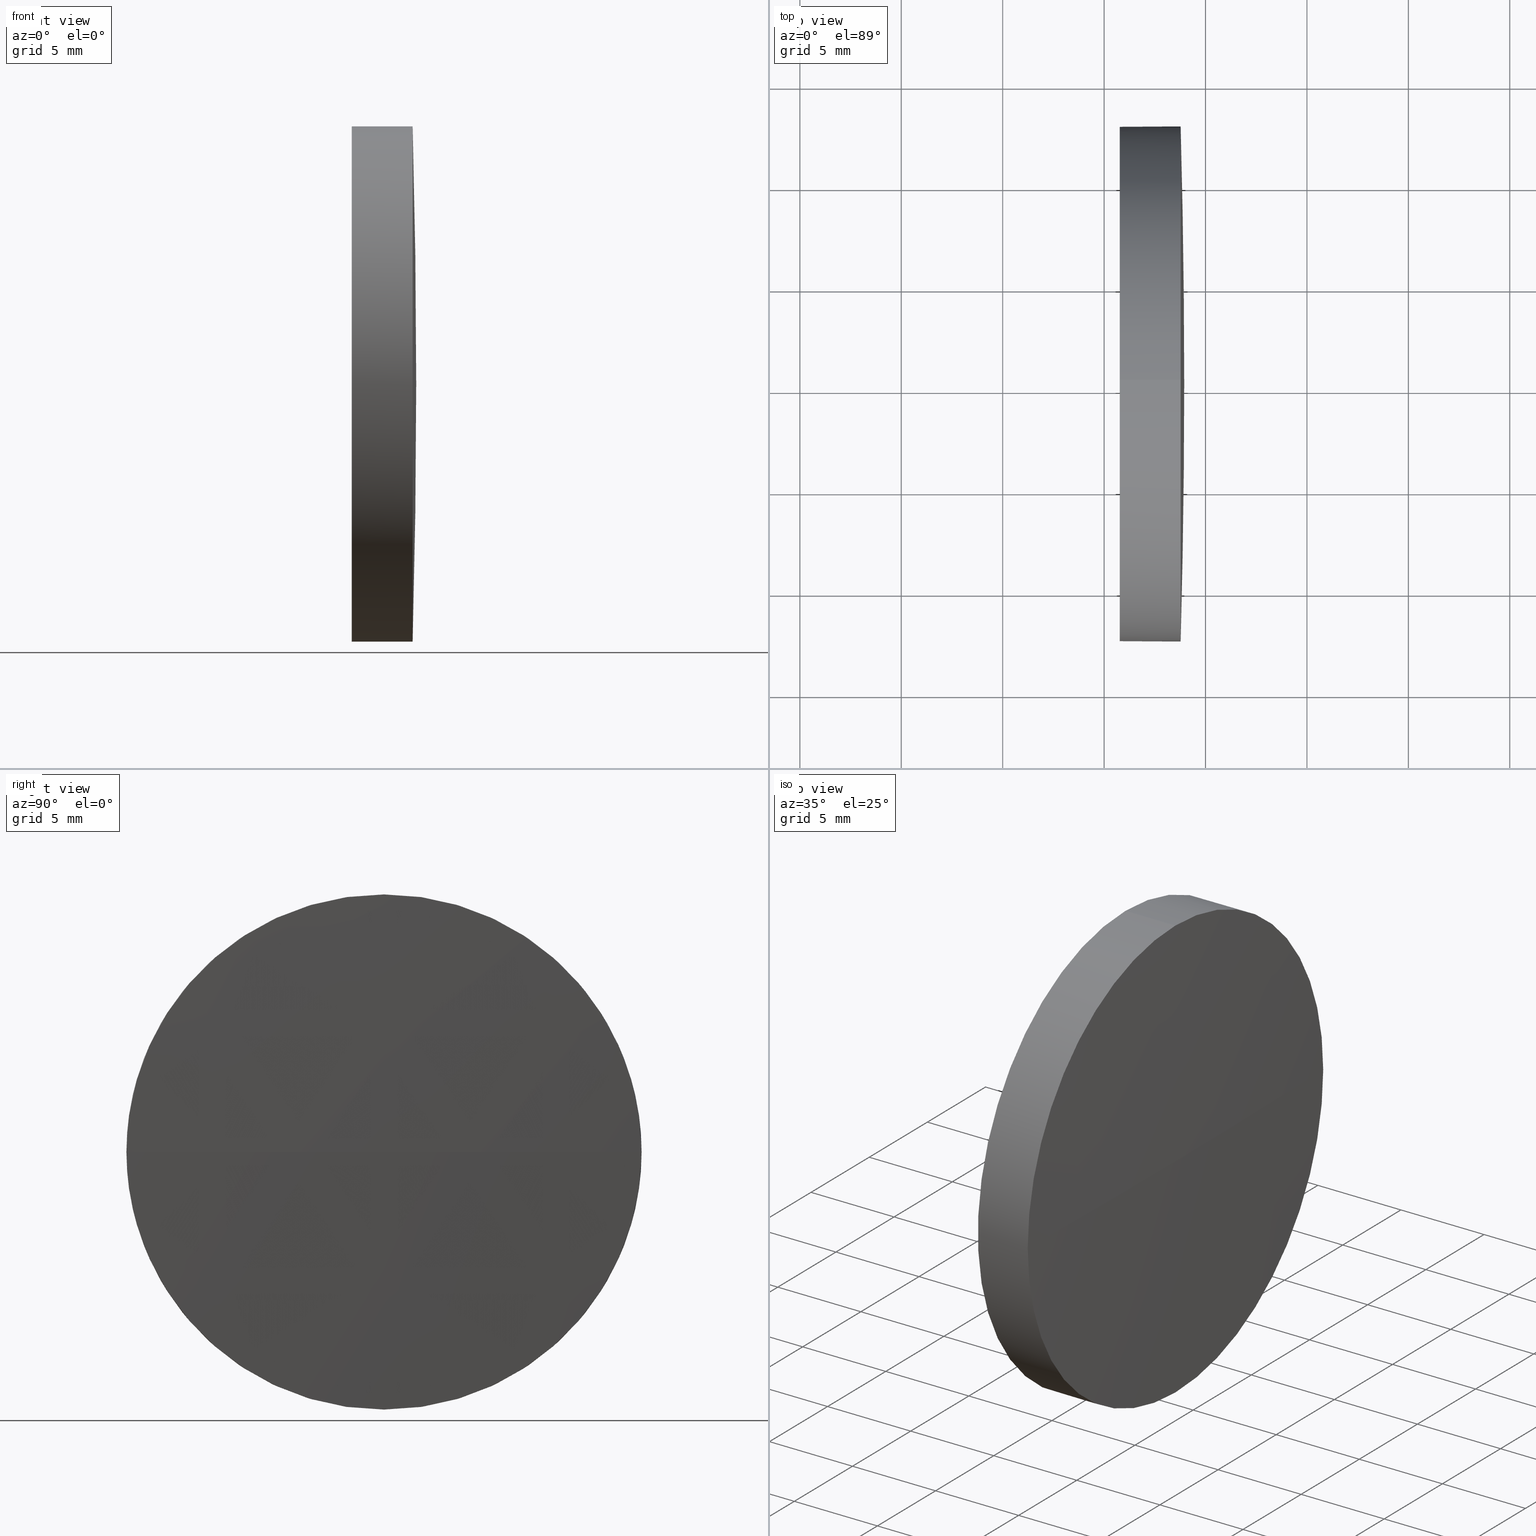
[diagram: canonical four-view strip — front | top / right | iso, engineering-drawing reading convention]
A machine part, canonical four-view strip (front | top / right | iso — engineering-drawing reading convention). The complete STEP part file that produces these views, byte-faithful:
ISO-10303-21;
HEADER;
FILE_DESCRIPTION (( 'STEP AP214' ),
    '1' );
FILE_NAME ('400022.STEP',
    '2019-08-21T06:19:14',
    ( '' ),
    ( '' ),
    'SwSTEP 2.0',
    'SolidWorks 2016',
    '' );
FILE_SCHEMA (( 'AUTOMOTIVE_DESIGN' ));
ENDSEC;

DATA;
#1 = PRODUCT_DEFINITION ( 'δ֪', '', #101, #146 ) ;
#2 = EDGE_LOOP ( 'NONE', ( #55, #157, #121, #186 ) ) ;
#3 = EDGE_CURVE ( 'NONE', #47, #46, #42, .T. ) ;
#4 = PRODUCT_RELATED_PRODUCT_CATEGORY ( 'part', '', ( #26 ) ) ;
#5 = ORIENTED_EDGE ( 'NONE', *, *, #173, .T. ) ;
#6 = VERTEX_POINT ( 'NONE', #132 ) ;
#7 = CIRCLE ( 'NONE', #59, 459.0000000000000000 ) ;
#8 = EDGE_CURVE ( 'NONE', #30, #49, #161, .T. ) ;
#9 =( GEOMETRIC_REPRESENTATION_CONTEXT ( 3 ) GLOBAL_UNCERTAINTY_ASSIGNED_CONTEXT ( ( #50 ) ) GLOBAL_UNIT_ASSIGNED_CONTEXT ( ( #45, #57, #178 ) ) REPRESENTATION_CONTEXT ( 'NONE', 'WORKASPACE' ) );
#10 = ORIENTED_EDGE ( 'NONE', *, *, #72, .T. ) ;
#11 = FACE_OUTER_BOUND ( 'NONE', #144, .T. ) ;
#12 = CARTESIAN_POINT ( 'NONE',  ( 110.1653732284884500, 65.23355492641219700, 0.0000000000000000000 ) ) ;
#13 = DIRECTION ( 'NONE',  ( 0.0000000000000000000, 1.224646799147353200E-016, -1.000000000000000000 ) ) ;
#14 = CARTESIAN_POINT ( 'NONE',  ( -340.0503935691618800, 65.23355492641219700, 0.0000000000000000000 ) ) ;
#15 = CIRCLE ( 'NONE', #22, 12.70000000000000300 ) ;
#16 = CARTESIAN_POINT ( 'NONE',  ( -340.0503935691618800, 65.23355492641219700, 0.0000000000000000000 ) ) ;
#17 = DIRECTION ( 'NONE',  ( 0.0000000000000000000, 0.0000000000000000000, -1.000000000000000000 ) ) ;
#18 = SURFACE_SIDE_STYLE ('',( #165 ) ) ;
#19 = DIRECTION ( 'NONE',  ( 0.0000000000000000000, 0.0000000000000000000, 1.000000000000000000 ) ) ;
#20 = SURFACE_STYLE_USAGE ( .BOTH. , #184 ) ;
#21 = VECTOR ( 'NONE', #43, 1000.000000000000000 ) ;
#22 = AXIS2_PLACEMENT_3D ( 'NONE', #176, #35, #37 ) ;
#23 = ORIENTED_EDGE ( 'NONE', *, *, #3, .T. ) ;
#24 = EDGE_CURVE ( 'NONE', #75, #49, #15, .T. ) ;
#25 =( GEOMETRIC_REPRESENTATION_CONTEXT ( 3 ) GLOBAL_UNCERTAINTY_ASSIGNED_CONTEXT ( ( #69 ) ) GLOBAL_UNIT_ASSIGNED_CONTEXT ( ( #155, #181, #97 ) ) REPRESENTATION_CONTEXT ( 'NONE', 'WORKASPACE' ) );
#26 = PRODUCT ( '400022', '400022', '', ( #122 ) ) ;
#27 = ORIENTED_EDGE ( 'NONE', *, *, #169, .T. ) ;
#28 = COLOUR_RGB ( '',1.000000000000000000, 1.000000000000000000, 1.000000000000000000 ) ;
#29 = CARTESIAN_POINT ( 'NONE',  ( 118.7738756233035200, 65.23355492641219700, -12.70000000000000300 ) ) ;
#30 = VERTEX_POINT ( 'NONE', #90 ) ;
#31 = DIRECTION ( 'NONE',  ( -1.000000000000000000, -0.0000000000000000000, -0.0000000000000000000 ) ) ;
#32 =( NAMED_UNIT ( * ) PLANE_ANGLE_UNIT ( ) SI_UNIT ( $, .RADIAN. ) );
#33 = DIRECTION ( 'NONE',  ( 0.0000000000000000000, 1.000000000000000000, 1.224646799147353200E-016 ) ) ;
#34 = DIRECTION ( 'NONE',  ( 0.0000000000000000000, 1.000000000000000000, 0.0000000000000000000 ) ) ;
#35 = DIRECTION ( 'NONE',  ( -1.000000000000000000, -0.0000000000000000000, -0.0000000000000000000 ) ) ;
#36 = CARTESIAN_POINT ( 'NONE',  ( 115.7736064308381300, 65.23355492641219700, 12.70000000000000300 ) ) ;
#37 = DIRECTION ( 'NONE',  ( 0.0000000000000000000, 0.0000000000000000000, 1.000000000000000000 ) ) ;
#38 = CARTESIAN_POINT ( 'NONE',  ( 115.7736064308381300, 65.23355492641219700, 0.0000000000000000000 ) ) ;
#39 = ORIENTED_EDGE ( 'NONE', *, *, #173, .F. ) ;
#40 = DIRECTION ( 'NONE',  ( 0.0000000000000000000, 0.0000000000000000000, 1.000000000000000000 ) ) ;
#41 = DIRECTION ( 'NONE',  ( -0.0000000000000000000, 0.0000000000000000000, -1.000000000000000000 ) ) ;
#42 = CIRCLE ( 'NONE', #154, 12.70000000000000300 ) ;
#43 = DIRECTION ( 'NONE',  ( -1.000000000000000000, -0.0000000000000000000, -0.0000000000000000000 ) ) ;
#44 = DIRECTION ( 'NONE',  ( -1.000000000000000000, -0.0000000000000000000, -0.0000000000000000000 ) ) ;
#45 =( LENGTH_UNIT ( ) NAMED_UNIT ( * ) SI_UNIT ( .MILLI., .METRE. ) );
#46 = VERTEX_POINT ( 'NONE', #119 ) ;
#47 = VERTEX_POINT ( 'NONE', #36 ) ;
#48 = ORIENTED_EDGE ( 'NONE', *, *, #3, .F. ) ;
#49 = VERTEX_POINT ( 'NONE', #104 ) ;
#50 = UNCERTAINTY_MEASURE_WITH_UNIT (LENGTH_MEASURE( 1.000000000000000100E-005 ), #45, 'distance_accuracy_value', 'NONE');
#51 = CARTESIAN_POINT ( 'NONE',  ( 118.7738756233035200, 65.23355492641219700, 12.70000000000000300 ) ) ;
#52 = SPHERICAL_SURFACE ( 'NONE', #147, 459.0000000000000000 ) ;
#53 = DIRECTION ( 'NONE',  ( -1.000000000000000000, -0.0000000000000000000, -0.0000000000000000000 ) ) ;
#54 = DIRECTION ( 'NONE',  ( 0.0000000000000000000, 0.0000000000000000000, 1.000000000000000000 ) ) ;
#55 = ORIENTED_EDGE ( 'NONE', *, *, #8, .F. ) ;
#56 = CARTESIAN_POINT ( 'NONE',  ( 115.7736064308381300, 65.23355492641219700, 0.0000000000000000000 ) ) ;
#57 =( NAMED_UNIT ( * ) PLANE_ANGLE_UNIT ( ) SI_UNIT ( $, .RADIAN. ) );
#58 = APPLICATION_CONTEXT ( 'automotive_design' ) ;
#59 = AXIS2_PLACEMENT_3D ( 'NONE', #14, #13, #33 ) ;
#60 = DIRECTION ( 'NONE',  ( 1.000000000000000000, 0.0000000000000000000, 0.0000000000000000000 ) ) ;
#61 = LINE ( 'NONE', #95, #21 ) ;
#62 = SURFACE_STYLE_FILL_AREA ( #110 ) ;
#63 = ORIENTED_EDGE ( 'NONE', *, *, #24, .F. ) ;
#64 = AXIS2_PLACEMENT_3D ( 'NONE', #141, #136, #60 ) ;
#65 = ORIENTED_EDGE ( 'NONE', *, *, #185, .T. ) ;
#66 = FACE_OUTER_BOUND ( 'NONE', #2, .T. ) ;
#67 = CARTESIAN_POINT ( 'NONE',  ( 115.7736064308381300, 65.23355492641219700, 0.0000000000000000000 ) ) ;
#68 = CARTESIAN_POINT ( 'NONE',  ( 118.7738756233035200, 65.23355492641219700, 0.0000000000000000000 ) ) ;
#69 = UNCERTAINTY_MEASURE_WITH_UNIT (LENGTH_MEASURE( 1.000000000000000100E-005 ), #155, 'distance_accuracy_value', 'NONE');
#70 = ADVANCED_FACE ( 'NONE', ( #85 ), #115, .T. ) ;
#71 = SHAPE_DEFINITION_REPRESENTATION ( #182, #172 ) ;
#72 = EDGE_CURVE ( 'NONE', #6, #75, #108, .T. ) ;
#73 = EDGE_LOOP ( 'NONE', ( #180, #27, #10, #5, #103 ) ) ;
#74 = ORIENTED_EDGE ( 'NONE', *, *, #170, .T. ) ;
#75 = VERTEX_POINT ( 'NONE', #51 ) ;
#76 = CARTESIAN_POINT ( 'NONE',  ( 118.7738756233035200, 65.23355492641219700, 0.0000000000000000000 ) ) ;
#77 = FACE_OUTER_BOUND ( 'NONE', #127, .T. ) ;
#78 = CARTESIAN_POINT ( 'NONE',  ( 118.7738756233035200, 65.23355492641219700, 0.0000000000000000000 ) ) ;
#79 = PRESENTATION_STYLE_ASSIGNMENT (( #167 ) ) ;
#80 = CARTESIAN_POINT ( 'NONE',  ( 110.1653732284884500, 65.23355492641219700, 12.70000000000000300 ) ) ;
#81 = DIRECTION ( 'NONE',  ( 0.0000000000000000000, 0.0000000000000000000, 1.000000000000000000 ) ) ;
#82 = ADVANCED_FACE ( 'NONE', ( #77 ), #102, .T. ) ;
#83 = AXIS2_PLACEMENT_3D ( 'NONE', #118, #53, #40 ) ;
#84 = DIRECTION ( 'NONE',  ( -1.000000000000000000, -0.0000000000000000000, -0.0000000000000000000 ) ) ;
#85 = FACE_OUTER_BOUND ( 'NONE', #73, .T. ) ;
#86 = SPHERICAL_SURFACE ( 'NONE', #98, 459.0000000000000000 ) ;
#87 = CLOSED_SHELL ( 'NONE', ( #82, #107, #179, #70, #140 ) ) ;
#88 = ORIENTED_EDGE ( 'NONE', *, *, #8, .T. ) ;
#89 = LINE ( 'NONE', #80, #152 ) ;
#90 = CARTESIAN_POINT ( 'NONE',  ( 118.9496064308381300, 65.23355492641222500, 0.0000000000000000000 ) ) ;
#91 = ORIENTED_EDGE ( 'NONE', *, *, #24, .T. ) ;
#92 = DIRECTION ( 'NONE',  ( 0.0000000000000000000, 0.0000000000000000000, 1.000000000000000000 ) ) ;
#93 =( LENGTH_UNIT ( ) NAMED_UNIT ( * ) SI_UNIT ( .MILLI., .METRE. ) );
#94 = DIRECTION ( 'NONE',  ( 0.0000000000000000000, 0.0000000000000000000, 1.000000000000000000 ) ) ;
#95 = CARTESIAN_POINT ( 'NONE',  ( 110.1653732284884500, 65.23355492641219700, -12.70000000000000300 ) ) ;
#96 = AXIS2_PLACEMENT_3D ( 'NONE', #78, #84, #94 ) ;
#97 =( NAMED_UNIT ( * ) SI_UNIT ( $, .STERADIAN. ) SOLID_ANGLE_UNIT ( ) );
#98 = AXIS2_PLACEMENT_3D ( 'NONE', #135, #139, #34 ) ;
#99 = MANIFOLD_SOLID_BREP ( '��ת1', #87 ) ;
#100 = COLOUR_RGB ( '',1.000000000000000000, 1.000000000000000000, 1.000000000000000000 ) ;
#101 = PRODUCT_DEFINITION_FORMATION_WITH_SPECIFIED_SOURCE ( '�κ�', '', #26, .NOT_KNOWN. ) ;
#102 = CYLINDRICAL_SURFACE ( 'NONE', #83, 12.70000000000000300 ) ;
#103 = ORIENTED_EDGE ( 'NONE', *, *, #185, .F. ) ;
#104 = CARTESIAN_POINT ( 'NONE',  ( 118.7738756233035700, 77.93355492641237000, 0.0000000000000000000 ) ) ;
#105 = DIRECTION ( 'NONE',  ( 0.0000000000000000000, 0.0000000000000000000, 1.000000000000000000 ) ) ;
#106 = FILL_AREA_STYLE_COLOUR ( '', #28 ) ;
#107 = ADVANCED_FACE ( 'NONE', ( #66 ), #52, .T. ) ;
#108 = CIRCLE ( 'NONE', #111, 12.70000000000000300 ) ;
#109 = FILL_AREA_STYLE ('',( #106 ) ) ;
#110 = FILL_AREA_STYLE ('',( #138 ) ) ;
#111 = AXIS2_PLACEMENT_3D ( 'NONE', #76, #148, #92 ) ;
#112 = VERTEX_POINT ( 'NONE', #29 ) ;
#113 = EDGE_LOOP ( 'NONE', ( #23, #65 ) ) ;
#114 = AXIS2_PLACEMENT_3D ( 'NONE', #149, #133, #163 ) ;
#115 = CYLINDRICAL_SURFACE ( 'NONE', #183, 12.70000000000000300 ) ;
#116 = PRESENTATION_LAYER_ASSIGNMENT (  '', '', ( #145 ) ) ;
#117 = UNCERTAINTY_MEASURE_WITH_UNIT (LENGTH_MEASURE( 1.000000000000000100E-005 ), #93, 'distance_accuracy_value', 'NONE');
#118 = CARTESIAN_POINT ( 'NONE',  ( 110.1653732284884500, 65.23355492641219700, 0.0000000000000000000 ) ) ;
#119 = CARTESIAN_POINT ( 'NONE',  ( 115.7736064308381300, 65.23355492641219700, -12.70000000000000300 ) ) ;
#120 = APPLICATION_PROTOCOL_DEFINITION ( 'draft international standard', 'automotive_design', 1998, #156 ) ;
#121 = ORIENTED_EDGE ( 'NONE', *, *, #169, .F. ) ;
#122 = PRODUCT_CONTEXT ( 'NONE', #156, 'mechanical' ) ;
#123 = CIRCLE ( 'NONE', #96, 12.70000000000000300 ) ;
#124 =( NAMED_UNIT ( * ) SI_UNIT ( $, .STERADIAN. ) SOLID_ANGLE_UNIT ( ) );
#125 = STYLED_ITEM ( 'NONE', ( #160 ), #172 ) ;
#126 = PLANE ( 'NONE',  #159 ) ;
#127 = EDGE_LOOP ( 'NONE', ( #74, #164, #48, #39, #91 ) ) ;
#128 = EDGE_CURVE ( 'NONE', #30, #6, #7, .T. ) ;
#129 = ORIENTED_EDGE ( 'NONE', *, *, #128, .F. ) ;
#130 = AXIS2_PLACEMENT_3D ( 'NONE', #68, #151, #19 ) ;
#131 = PRESENTATION_LAYER_ASSIGNMENT (  '', '', ( #125 ) ) ;
#132 = CARTESIAN_POINT ( 'NONE',  ( 118.7738756233035700, 52.53355492641202300, -1.555301434917158900E-015 ) ) ;
#133 = DIRECTION ( 'NONE',  ( -0.0000000000000000000, 0.0000000000000000000, 1.000000000000000000 ) ) ;
#134 = EDGE_CURVE ( 'NONE', #112, #46, #61, .T. ) ;
#135 = CARTESIAN_POINT ( 'NONE',  ( -340.0503935691618800, 65.23355492641219700, 0.0000000000000000000 ) ) ;
#136 = DIRECTION ( 'NONE',  ( 0.0000000000000000000, 0.0000000000000000000, 1.000000000000000000 ) ) ;
#137 = DIRECTION ( 'NONE',  ( 0.0000000000000000000, 1.000000000000000000, 0.0000000000000000000 ) ) ;
#138 = FILL_AREA_STYLE_COLOUR ( '', #100 ) ;
#139 = DIRECTION ( 'NONE',  ( -0.0000000000000000000, 0.0000000000000000000, -1.000000000000000000 ) ) ;
#140 = ADVANCED_FACE ( 'NONE', ( #175 ), #126, .F. ) ;
#141 = CARTESIAN_POINT ( 'NONE',  ( 0.0000000000000000000, 0.0000000000000000000, 0.0000000000000000000 ) ) ;
#142 = AXIS2_PLACEMENT_3D ( 'NONE', #67, #166, #81 ) ;
#143 = CIRCLE ( 'NONE', #130, 12.70000000000000300 ) ;
#144 = EDGE_LOOP ( 'NONE', ( #129, #88, #63, #150 ) ) ;
#145 = STYLED_ITEM ( 'NONE', ( #79 ), #99 ) ;
#146 = PRODUCT_DEFINITION_CONTEXT ( 'detailed design', #58, 'design' ) ;
#147 = AXIS2_PLACEMENT_3D ( 'NONE', #16, #41, #137 ) ;
#148 = DIRECTION ( 'NONE',  ( -1.000000000000000000, -0.0000000000000000000, -0.0000000000000000000 ) ) ;
#149 = CARTESIAN_POINT ( 'NONE',  ( -340.0503935691618800, 65.23355492641219700, 0.0000000000000000000 ) ) ;
#150 = ORIENTED_EDGE ( 'NONE', *, *, #72, .F. ) ;
#151 = DIRECTION ( 'NONE',  ( -1.000000000000000000, -0.0000000000000000000, -0.0000000000000000000 ) ) ;
#152 = VECTOR ( 'NONE', #44, 1000.000000000000000 ) ;
#153 = DIRECTION ( 'NONE',  ( 1.000000000000000000, 0.0000000000000000000, 0.0000000000000000000 ) ) ;
#154 = AXIS2_PLACEMENT_3D ( 'NONE', #38, #177, #54 ) ;
#155 =( LENGTH_UNIT ( ) NAMED_UNIT ( * ) SI_UNIT ( .MILLI., .METRE. ) );
#156 = APPLICATION_CONTEXT ( 'automotive_design' ) ;
#157 = ORIENTED_EDGE ( 'NONE', *, *, #128, .T. ) ;
#158 = CIRCLE ( 'NONE', #142, 12.70000000000000300 ) ;
#159 = AXIS2_PLACEMENT_3D ( 'NONE', #56, #153, #17 ) ;
#160 = PRESENTATION_STYLE_ASSIGNMENT (( #20 ) ) ;
#161 = CIRCLE ( 'NONE', #114, 459.0000000000000000 ) ;
#162 = MECHANICAL_DESIGN_GEOMETRIC_PRESENTATION_REPRESENTATION (  '', ( #125 ), #9 ) ;
#163 = DIRECTION ( 'NONE',  ( 1.000000000000000000, 0.0000000000000000000, 0.0000000000000000000 ) ) ;
#164 = ORIENTED_EDGE ( 'NONE', *, *, #134, .T. ) ;
#165 = SURFACE_STYLE_FILL_AREA ( #109 ) ;
#166 = DIRECTION ( 'NONE',  ( -1.000000000000000000, -0.0000000000000000000, -0.0000000000000000000 ) ) ;
#167 = SURFACE_STYLE_USAGE ( .BOTH. , #18 ) ;
#168 = APPLICATION_PROTOCOL_DEFINITION ( 'draft international standard', 'automotive_design', 1998, #58 ) ;
#169 = EDGE_CURVE ( 'NONE', #112, #6, #143, .T. ) ;
#170 = EDGE_CURVE ( 'NONE', #49, #112, #123, .T. ) ;
#171 = MECHANICAL_DESIGN_GEOMETRIC_PRESENTATION_REPRESENTATION (  '', ( #145 ), #174 ) ;
#172 = ADVANCED_BREP_SHAPE_REPRESENTATION ( '400022', ( #99, #64 ), #25 ) ;
#173 = EDGE_CURVE ( 'NONE', #75, #47, #89, .T. ) ;
#174 =( GEOMETRIC_REPRESENTATION_CONTEXT ( 3 ) GLOBAL_UNCERTAINTY_ASSIGNED_CONTEXT ( ( #117 ) ) GLOBAL_UNIT_ASSIGNED_CONTEXT ( ( #93, #32, #124 ) ) REPRESENTATION_CONTEXT ( 'NONE', 'WORKASPACE' ) );
#175 = FACE_OUTER_BOUND ( 'NONE', #113, .T. ) ;
#176 = CARTESIAN_POINT ( 'NONE',  ( 118.7738756233035200, 65.23355492641219700, 0.0000000000000000000 ) ) ;
#177 = DIRECTION ( 'NONE',  ( -1.000000000000000000, -0.0000000000000000000, -0.0000000000000000000 ) ) ;
#178 =( NAMED_UNIT ( * ) SI_UNIT ( $, .STERADIAN. ) SOLID_ANGLE_UNIT ( ) );
#179 = ADVANCED_FACE ( 'NONE', ( #11 ), #86, .T. ) ;
#180 = ORIENTED_EDGE ( 'NONE', *, *, #134, .F. ) ;
#181 =( NAMED_UNIT ( * ) PLANE_ANGLE_UNIT ( ) SI_UNIT ( $, .RADIAN. ) );
#182 = PRODUCT_DEFINITION_SHAPE ( 'NONE', 'NONE',  #1 ) ;
#183 = AXIS2_PLACEMENT_3D ( 'NONE', #12, #31, #105 ) ;
#184 = SURFACE_SIDE_STYLE ('',( #62 ) ) ;
#185 = EDGE_CURVE ( 'NONE', #46, #47, #158, .T. ) ;
#186 = ORIENTED_EDGE ( 'NONE', *, *, #170, .F. ) ;
ENDSEC;
END-ISO-10303-21;
